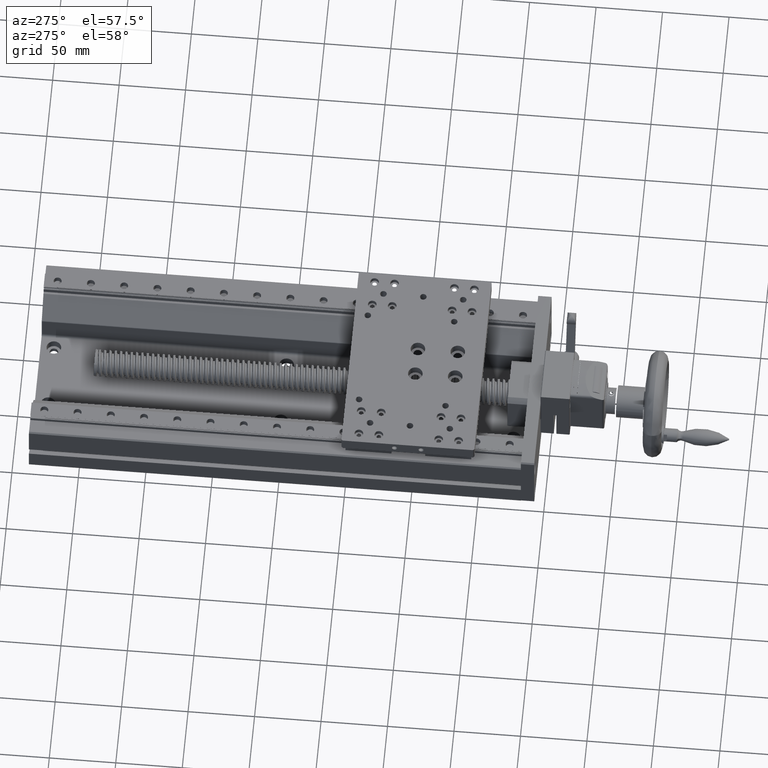
[diagram: clean part render]
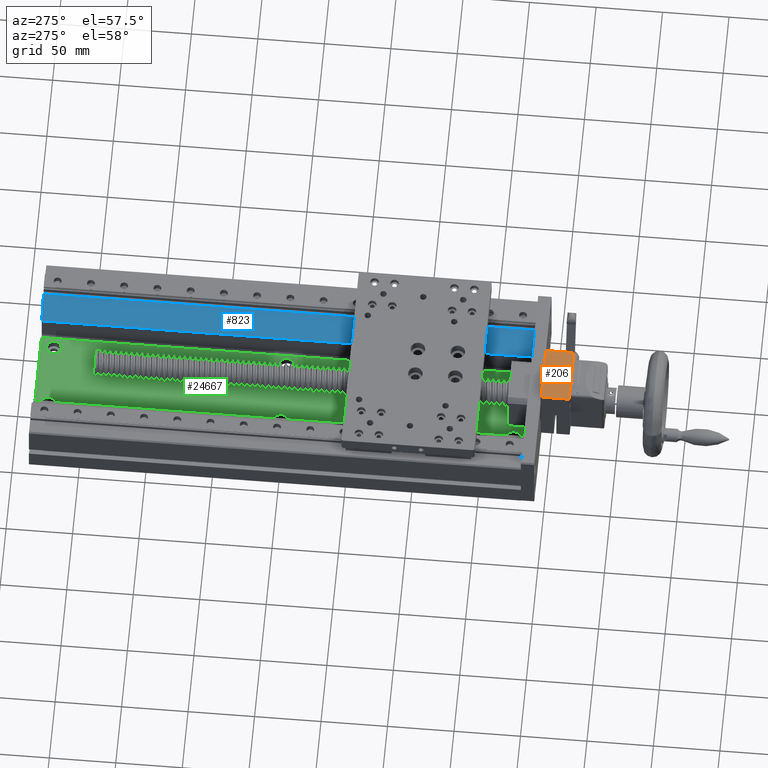
[diagram: same view with three faces highlighted in distinct colors, each labeled with its STEP entity id]
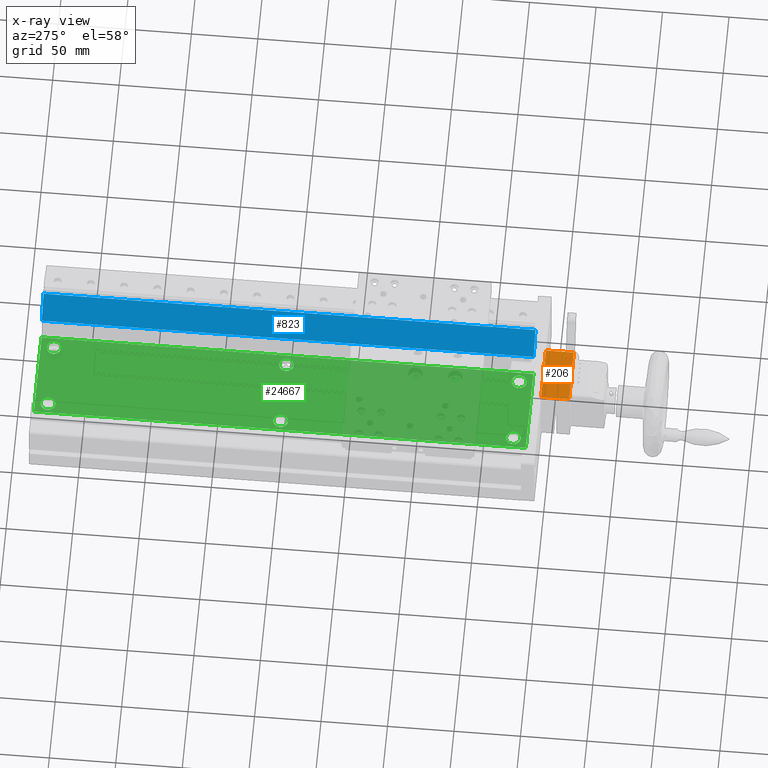
[diagram: x-ray of the same camera — body ghosted, the three highlighted faces saturated]
A machine part, auxiliary view with three faces highlighted in distinct colors.
The next image is the same camera in x-ray (body ghosted, the three faces saturated) — at least one of them is partly hidden behind the body in this view.
Their STEP definitions:

[orange] entity #206 — the highlighted planar face has unit normal (-0, -0, 1).
#206 = ADVANCED_FACE ( 'NONE', ( #39306 ), #38650, .T. ) ;
#697 = VERTEX_POINT ( 'NONE', #29637 ) ;
#2305 = CARTESIAN_POINT ( 'NONE',  ( -48.82647947996969862, -164.5472645979068602, 43.50000000000032685 ) ) ;
#2568 = VECTOR ( 'NONE', #10363, 1000.000000000000000 ) ;
#4469 = EDGE_CURVE ( 'NONE', #31487, #41427, #31402, .T. ) ;
#4506 = AXIS2_PLACEMENT_3D ( 'NONE', #5231, #4803, #28599 ) ;
#4803 = DIRECTION ( 'NONE',  ( -5.554584570077736316E-14, -2.330995182386724595E-16, 1.000000000000000000 ) ) ;
#5231 = CARTESIAN_POINT ( 'NONE',  ( -48.82647947996969862, -165.0472645979068886, 43.50000000000032685 ) ) ;
#7297 = EDGE_CURVE ( 'NONE', #697, #36665, #35237, .T. ) ;
#8092 = CARTESIAN_POINT ( 'NONE',  ( -7.326479479969713715, -165.0472645979070876, 43.50000000000264322 ) ) ;
#9480 = EDGE_CURVE ( 'NONE', #36665, #41427, #21085, .T. ) ;
#10363 = DIRECTION ( 'NONE',  ( 1.000000000000000000, -4.988643906119555962E-15, 5.571237915447113664E-14 ) ) ;
#10793 = CARTESIAN_POINT ( 'NONE',  ( -6.826479479969699504, -164.5472645979070876, 43.50000000000267164 ) ) ;
#11322 = ORIENTED_EDGE ( 'NONE', *, *, #29285, .T. ) ;
#13704 = ORIENTED_EDGE ( 'NONE', *, *, #7297, .T. ) ;
#17697 = CARTESIAN_POINT ( 'NONE',  ( -48.82647947996959203, -143.5472645979068886, 43.50000000000033396 ) ) ;
#21085 = LINE ( 'NONE', #17697, #42819 ) ;
#21454 = CARTESIAN_POINT ( 'NONE',  ( -48.82647947996959203, -143.5472645979068886, 43.50000000000033396 ) ) ;
#21804 = DIRECTION ( 'NONE',  ( 5.154905759538192104E-15, 1.000000000000000000, 2.330995182389588160E-16 ) ) ;
#25384 = VECTOR ( 'NONE', #42141, 1000.000000000000000 ) ;
#26377 = EDGE_LOOP ( 'NONE', ( #13704, #44239, #42542, #11322 ) ) ;
#27129 = CARTESIAN_POINT ( 'NONE',  ( -7.326479479969602693, -143.5472645979070876, 43.50000000000265032 ) ) ;
#28599 = DIRECTION ( 'NONE',  ( -5.154905759538192104E-15, -1.000000000000000000, -2.330995182389588160E-16 ) ) ;
#28688 = DIRECTION ( 'NONE',  ( -1.000000000000000000, 4.988643906119555962E-15, -5.571237915447113664E-14 ) ) ;
#29285 = EDGE_CURVE ( 'NONE', #31487, #697, #41280, .T. ) ;
#29637 = CARTESIAN_POINT ( 'NONE',  ( -7.326479479969713715, -164.5472645979070876, 43.50000000000264322 ) ) ;
#31402 = LINE ( 'NONE', #41927, #25384 ) ;
#31487 = VERTEX_POINT ( 'NONE', #2305 ) ;
#35237 = LINE ( 'NONE', #8092, #37683 ) ;
#36665 = VERTEX_POINT ( 'NONE', #27129 ) ;
#37683 = VECTOR ( 'NONE', #21804, 1000.000000000000000 ) ;
#38650 = PLANE ( 'NONE',  #4506 ) ;
#39306 = FACE_OUTER_BOUND ( 'NONE', #26377, .T. ) ;
#41280 = LINE ( 'NONE', #10793, #2568 ) ;
#41427 = VERTEX_POINT ( 'NONE', #21454 ) ;
#41927 = CARTESIAN_POINT ( 'NONE',  ( -48.82647947996969862, -165.0472645979068886, 43.50000000000032685 ) ) ;
#42141 = DIRECTION ( 'NONE',  ( 5.154905759538192104E-15, 1.000000000000000000, 2.330995182389588160E-16 ) ) ;
#42542 = ORIENTED_EDGE ( 'NONE', *, *, #4469, .F. ) ;
#42819 = VECTOR ( 'NONE', #28688, 1000.000000000000000 ) ;
#44239 = ORIENTED_EDGE ( 'NONE', *, *, #9480, .T. ) ;

[blue] entity #823 — the highlighted planar face has unit normal (-0.7071, 0, 0.7071).
#455 = VECTOR ( 'NONE', #2909, 1000.000000000000114 ) ;
#823 = ADVANCED_FACE ( 'NONE', ( #37671 ), #20213, .T. ) ;
#1484 = DIRECTION ( 'NONE',  ( 3.491481338843133355E-15, 1.000000000000000000, -3.657132581846951845E-29 ) ) ;
#2374 = VERTEX_POINT ( 'NONE', #20084 ) ;
#2909 = DIRECTION ( 'NONE',  ( 0.7071067811866114106, -2.468850131082462164E-15, 0.7071067811864837349 ) ) ;
#3520 = LINE ( 'NONE', #37819, #5252 ) ;
#5252 = VECTOR ( 'NONE', #18085, 1000.000000000000114 ) ;
#5522 = LINE ( 'NONE', #19213, #9824 ) ;
#6726 = DIRECTION ( 'NONE',  ( -0.7071067811864837349, 2.468850131082068917E-15, 0.7071067811866112995 ) ) ;
#7551 = EDGE_CURVE ( 'NONE', #2374, #22403, #41243, .T. ) ;
#8920 = LINE ( 'NONE', #22835, #34039 ) ;
#9824 = VECTOR ( 'NONE', #1484, 1000.000000000000000 ) ;
#10545 = CARTESIAN_POINT ( 'NONE',  ( 7.466413739012411455, 236.9527354020911218, 9.792893218810050371 ) ) ;
#11752 = VERTEX_POINT ( 'NONE', #29406 ) ;
#14636 = VERTEX_POINT ( 'NONE', #35830 ) ;
#14638 = EDGE_CURVE ( 'NONE', #11752, #22403, #8920, .T. ) ;
#17335 = ORIENTED_EDGE ( 'NONE', *, *, #7551, .F. ) ;
#18085 = DIRECTION ( 'NONE',  ( 0.7071067811866114106, -2.468850131082462164E-15, 0.7071067811864837349 ) ) ;
#18217 = EDGE_CURVE ( 'NONE', #14636, #11752, #3520, .T. ) ;
#19213 = CARTESIAN_POINT ( 'NONE',  ( 7.466413739011135142, -133.0472645979088782, 9.792893218810050371 ) ) ;
#19477 = ORIENTED_EDGE ( 'NONE', *, *, #18217, .T. ) ;
#20084 = CARTESIAN_POINT ( 'NONE',  ( 7.466413739012411455, 236.9527354020911218, 9.792893218810050371 ) ) ;
#20213 = PLANE ( 'NONE',  #24352 ) ;
#22403 = VERTEX_POINT ( 'NONE', #23032 ) ;
#22835 = CARTESIAN_POINT ( 'NONE',  ( 22.17352052020166298, -133.0472645979089350, 24.49999999999796785 ) ) ;
#23032 = CARTESIAN_POINT ( 'NONE',  ( 22.17352052020293840, 236.9527354020910650, 24.49999999999796785 ) ) ;
#23803 = CARTESIAN_POINT ( 'NONE',  ( 7.466413739011135142, -133.0472645979088782, 9.792893218810050371 ) ) ;
#24352 = AXIS2_PLACEMENT_3D ( 'NONE', #23803, #6726, #37223 ) ;
#29406 = CARTESIAN_POINT ( 'NONE',  ( 22.17352052020166298, -133.0472645979089350, 24.49999999999796785 ) ) ;
#29797 = EDGE_LOOP ( 'NONE', ( #17335, #31408, #19477, #32423 ) ) ;
#31408 = ORIENTED_EDGE ( 'NONE', *, *, #32087, .F. ) ;
#32087 = EDGE_CURVE ( 'NONE', #14636, #2374, #5522, .T. ) ;
#32423 = ORIENTED_EDGE ( 'NONE', *, *, #14638, .T. ) ;
#34039 = VECTOR ( 'NONE', #36480, 1000.000000000000000 ) ;
#35830 = CARTESIAN_POINT ( 'NONE',  ( 7.466413739011135142, -133.0472645979088782, 9.792893218810050371 ) ) ;
#36480 = DIRECTION ( 'NONE',  ( 3.491481338843133355E-15, 1.000000000000000000, -3.657132581846951845E-29 ) ) ;
#37223 = DIRECTION ( 'NONE',  ( 0.7071067811866112995, -2.468850131082462164E-15, 0.7071067811864837349 ) ) ;
#37671 = FACE_OUTER_BOUND ( 'NONE', #29797, .T. ) ;
#37819 = CARTESIAN_POINT ( 'NONE',  ( 7.466413739011135142, -133.0472645979088782, 9.792893218810050371 ) ) ;
#41243 = LINE ( 'NONE', #10545, #455 ) ;

[green] entity #24667 — the highlighted planar face has unit normal (0, 0, 1).
#145 = CARTESIAN_POINT ( 'NONE',  ( -2.826479479797241456, 232.4527354020911218, -10.00000000000156319 ) ) ;
#420 = AXIS2_PLACEMENT_3D ( 'NONE', #5492, #37082, #2113 ) ;
#432 = EDGE_CURVE ( 'NONE', #40014, #7280, #4549, .T. ) ;
#1128 = ORIENTED_EDGE ( 'NONE', *, *, #22511, .F. ) ;
#1841 = CARTESIAN_POINT ( 'NONE',  ( -52.82647947979784675, 51.95273540209130658, -10.00000000000156319 ) ) ;
#2113 = DIRECTION ( 'NONE',  ( -3.469446951953610639E-15, -1.000000000000000000, 0.000000000000000000 ) ) ;
#2554 = FACE_BOUND ( 'NONE', #14219, .T. ) ;
#2637 = VERTEX_POINT ( 'NONE', #11086 ) ;
#2768 = FACE_BOUND ( 'NONE', #36443, .T. ) ;
#3188 = AXIS2_PLACEMENT_3D ( 'NONE', #9635, #30041, #16781 ) ;
#3883 = CIRCLE ( 'NONE', #3188, 5.500000000000005329 ) ;
#3936 = LINE ( 'NONE', #27955, #21133 ) ;
#4125 = EDGE_LOOP ( 'NONE', ( #7380, #1128 ) ) ;
#4353 = EDGE_LOOP ( 'NONE', ( #25785, #28111, #20445, #39198 ) ) ;
#4549 = CIRCLE ( 'NONE', #28916, 5.500000000000005329 ) ;
#4613 = VERTEX_POINT ( 'NONE', #10052 ) ;
#4643 = CARTESIAN_POINT ( 'NONE',  ( 5.173520520199259565, -133.0472645979088782, -10.00000000000156319 ) ) ;
#4935 = CIRCLE ( 'NONE', #21420, 5.500000000000005329 ) ;
#5492 = CARTESIAN_POINT ( 'NONE',  ( -2.826479479798471584, -123.0472645979088213, -10.00000000000156319 ) ) ;
#6599 = CARTESIAN_POINT ( 'NONE',  ( 5.173520520199259565, -133.0472645979088782, -10.00000000000156319 ) ) ;
#6868 = CIRCLE ( 'NONE', #420, 5.500000000000005329 ) ;
#7108 = CARTESIAN_POINT ( 'NONE',  ( -2.826479479798462702, -117.5472645979088213, -10.00000000000156319 ) ) ;
#7115 = ORIENTED_EDGE ( 'NONE', *, *, #432, .F. ) ;
#7214 = CIRCLE ( 'NONE', #18687, 5.500000000000005329 ) ;
#7280 = VERTEX_POINT ( 'NONE', #38805 ) ;
#7312 = AXIS2_PLACEMENT_3D ( 'NONE', #16134, #19512, #9415 ) ;
#7380 = ORIENTED_EDGE ( 'NONE', *, *, #19348, .F. ) ;
#7590 = LINE ( 'NONE', #24660, #9501 ) ;
#7740 = DIRECTION ( 'NONE',  ( -3.469446951953610639E-15, -1.000000000000000000, 0.000000000000000000 ) ) ;
#8165 = EDGE_CURVE ( 'NONE', #30582, #43691, #4935, .T. ) ;
#8581 = DIRECTION ( 'NONE',  ( -3.784851220313030003E-15, -1.000000000000000000, 0.000000000000000000 ) ) ;
#8736 = CARTESIAN_POINT ( 'NONE',  ( -52.82647947979786807, 46.45273540209129948, -10.00000000000156319 ) ) ;
#8815 = AXIS2_PLACEMENT_3D ( 'NONE', #24338, #40888, #17802 ) ;
#9104 = ORIENTED_EDGE ( 'NONE', *, *, #41941, .F. ) ;
#9415 = DIRECTION ( 'NONE',  ( -3.469446951953610639E-15, -1.000000000000000000, 0.000000000000000000 ) ) ;
#9436 = AXIS2_PLACEMENT_3D ( 'NONE', #24159, #17379, #7740 ) ;
#9464 = CARTESIAN_POINT ( 'NONE',  ( -52.82647947979783254, 57.45273540209130658, -10.00000000000156319 ) ) ;
#9466 = AXIS2_PLACEMENT_3D ( 'NONE', #10926, #11581, #42079 ) ;
#9501 = VECTOR ( 'NONE', #21517, 1000.000000000000000 ) ;
#9635 = CARTESIAN_POINT ( 'NONE',  ( -52.82647947979724279, 226.9527354020912924, -10.00000000000156319 ) ) ;
#9739 = FACE_BOUND ( 'NONE', #10377, .T. ) ;
#10022 = ORIENTED_EDGE ( 'NONE', *, *, #16575, .F. ) ;
#10052 = CARTESIAN_POINT ( 'NONE',  ( -2.826479479798490679, -128.5472645979088213, -10.00000000000156319 ) ) ;
#10184 = VECTOR ( 'NONE', #22370, 1000.000000000000000 ) ;
#10377 = EDGE_LOOP ( 'NONE', ( #25655, #10022 ) ) ;
#10387 = DIRECTION ( 'NONE',  ( 1.000000000000000000, -3.491481338843133355E-15, -3.491481338843133355E-15 ) ) ;
#10822 = ORIENTED_EDGE ( 'NONE', *, *, #8165, .F. ) ;
#10878 = CIRCLE ( 'NONE', #7312, 5.500000000000005329 ) ;
#10926 = CARTESIAN_POINT ( 'NONE',  ( -2.826479479797860961, 51.95273540209113605, -10.00000000000156319 ) ) ;
#11086 = CARTESIAN_POINT ( 'NONE',  ( 5.173520520200536765, 236.9527354020911218, -10.00000000000156319 ) ) ;
#11133 = CARTESIAN_POINT ( 'NONE',  ( -52.82647947979722858, 232.4527354020912924, -10.00000000000156319 ) ) ;
#11443 = ORIENTED_EDGE ( 'NONE', *, *, #21760, .F. ) ;
#11536 = EDGE_CURVE ( 'NONE', #39176, #2637, #38387, .T. ) ;
#11581 = DIRECTION ( 'NONE',  ( 3.491481338843133355E-15, 2.438088387897967896E-29, 1.000000000000000000 ) ) ;
#12359 = CARTESIAN_POINT ( 'NONE',  ( -60.82647947979946679, 236.9527354020913208, -10.00000000000156319 ) ) ;
#12487 = VERTEX_POINT ( 'NONE', #6599 ) ;
#12723 = EDGE_CURVE ( 'NONE', #7280, #40014, #38913, .T. ) ;
#12761 = VERTEX_POINT ( 'NONE', #9464 ) ;
#13081 = VERTEX_POINT ( 'NONE', #35877 ) ;
#13083 = DIRECTION ( 'NONE',  ( -3.784851220313030003E-15, -1.000000000000000000, 0.000000000000000000 ) ) ;
#13316 = FACE_OUTER_BOUND ( 'NONE', #4353, .T. ) ;
#14219 = EDGE_LOOP ( 'NONE', ( #9104, #10822 ) ) ;
#14368 = CARTESIAN_POINT ( 'NONE',  ( -52.82647947979724279, 226.9527354020912924, -10.00000000000156319 ) ) ;
#14485 = DIRECTION ( 'NONE',  ( 1.000000000000000000, -3.491481338843133355E-15, -3.491481338843133355E-15 ) ) ;
#16046 = EDGE_CURVE ( 'NONE', #35369, #17813, #21652, .T. ) ;
#16134 = CARTESIAN_POINT ( 'NONE',  ( -2.826479479797860961, 51.95273540209113605, -10.00000000000156319 ) ) ;
#16443 = DIRECTION ( 'NONE',  ( 3.491481338843133355E-15, 2.438088387897967896E-29, 1.000000000000000000 ) ) ;
#16575 = EDGE_CURVE ( 'NONE', #17813, #35369, #10878, .T. ) ;
#16682 = EDGE_CURVE ( 'NONE', #13081, #39176, #7590, .T. ) ;
#16781 = DIRECTION ( 'NONE',  ( -3.784851220313030003E-15, -1.000000000000000000, 0.000000000000000000 ) ) ;
#16897 = CARTESIAN_POINT ( 'NONE',  ( -60.82647947980074576, -133.0472645979086792, -10.00000000000156319 ) ) ;
#17089 = DIRECTION ( 'NONE',  ( -3.784851220313030003E-15, -1.000000000000000000, 0.000000000000000000 ) ) ;
#17379 = DIRECTION ( 'NONE',  ( 3.491481338843133355E-15, 2.438088387897967896E-29, 1.000000000000000000 ) ) ;
#17433 = AXIS2_PLACEMENT_3D ( 'NONE', #29894, #43080, #29427 ) ;
#17588 = ORIENTED_EDGE ( 'NONE', *, *, #12723, .F. ) ;
#17802 = DIRECTION ( 'NONE',  ( -3.469446951953610639E-15, -1.000000000000000000, 0.000000000000000000 ) ) ;
#17813 = VERTEX_POINT ( 'NONE', #34080 ) ;
#18170 = VERTEX_POINT ( 'NONE', #145 ) ;
#18550 = EDGE_CURVE ( 'NONE', #30838, #4613, #28186, .T. ) ;
#18687 = AXIS2_PLACEMENT_3D ( 'NONE', #30143, #43800, #13083 ) ;
#18807 = AXIS2_PLACEMENT_3D ( 'NONE', #30236, #30899, #36713 ) ;
#19348 = EDGE_CURVE ( 'NONE', #32567, #18170, #26689, .T. ) ;
#19512 = DIRECTION ( 'NONE',  ( 3.491481338843133355E-15, 2.438088387897967896E-29, 1.000000000000000000 ) ) ;
#20445 = ORIENTED_EDGE ( 'NONE', *, *, #27362, .T. ) ;
#21133 = VECTOR ( 'NONE', #14485, 1000.000000000000000 ) ;
#21420 = AXIS2_PLACEMENT_3D ( 'NONE', #14368, #28070, #37472 ) ;
#21517 = DIRECTION ( 'NONE',  ( 3.491481338843133355E-15, 1.000000000000000000, -3.657132581846951845E-29 ) ) ;
#21652 = CIRCLE ( 'NONE', #9466, 5.500000000000005329 ) ;
#21760 = EDGE_CURVE ( 'NONE', #12761, #40726, #7214, .T. ) ;
#22370 = DIRECTION ( 'NONE',  ( 3.491481338843133355E-15, 1.000000000000000000, -3.657132581846951845E-29 ) ) ;
#22511 = EDGE_CURVE ( 'NONE', #18170, #32567, #32371, .T. ) ;
#22572 = VECTOR ( 'NONE', #10387, 1000.000000000000000 ) ;
#23430 = DIRECTION ( 'NONE',  ( -3.491481338843133355E-15, -1.000000000000000000, 3.657132581846951845E-29 ) ) ;
#24159 = CARTESIAN_POINT ( 'NONE',  ( -2.826479479797250338, 226.9527354020911218, -10.00000000000156319 ) ) ;
#24338 = CARTESIAN_POINT ( 'NONE',  ( -2.826479479798471584, -123.0472645979088213, -10.00000000000156319 ) ) ;
#24660 = CARTESIAN_POINT ( 'NONE',  ( -60.82647947980074576, -133.0472645979086792, -10.00000000000156319 ) ) ;
#24667 = ADVANCED_FACE ( 'NONE', ( #44253, #36410, #26999, #2554, #2768, #9739, #13316 ), #33502, .T. ) ;
#24757 = EDGE_LOOP ( 'NONE', ( #43531, #41985 ) ) ;
#25636 = DIRECTION ( 'NONE',  ( 3.491481338843133355E-15, 2.438088387897967896E-29, 1.000000000000000000 ) ) ;
#25655 = ORIENTED_EDGE ( 'NONE', *, *, #16046, .F. ) ;
#25785 = ORIENTED_EDGE ( 'NONE', *, *, #11536, .F. ) ;
#26689 = CIRCLE ( 'NONE', #18807, 5.500000000000005329 ) ;
#26996 = CARTESIAN_POINT ( 'NONE',  ( -52.82647947979847913, -128.5472645979086508, -10.00000000000156319 ) ) ;
#26999 = FACE_BOUND ( 'NONE', #40510, .T. ) ;
#27362 = EDGE_CURVE ( 'NONE', #13081, #12487, #3936, .T. ) ;
#27667 = CARTESIAN_POINT ( 'NONE',  ( -60.82647947979946679, 236.9527354020913208, -10.00000000000156319 ) ) ;
#27876 = DIRECTION ( 'NONE',  ( 3.491481338843133355E-15, 2.438088387897967896E-29, 1.000000000000000000 ) ) ;
#27955 = CARTESIAN_POINT ( 'NONE',  ( -60.82647947980074576, -133.0472645979086792, -10.00000000000156319 ) ) ;
#28070 = DIRECTION ( 'NONE',  ( 3.491481338843133355E-15, 2.438088387897967896E-29, 1.000000000000000000 ) ) ;
#28111 = ORIENTED_EDGE ( 'NONE', *, *, #16682, .F. ) ;
#28186 = CIRCLE ( 'NONE', #8815, 5.500000000000005329 ) ;
#28198 = CARTESIAN_POINT ( 'NONE',  ( -52.82647947979725700, 221.4527354020912924, -10.00000000000156319 ) ) ;
#28405 = ORIENTED_EDGE ( 'NONE', *, *, #29084, .F. ) ;
#28916 = AXIS2_PLACEMENT_3D ( 'NONE', #30796, #27876, #17089 ) ;
#29084 = EDGE_CURVE ( 'NONE', #40726, #12761, #36939, .T. ) ;
#29427 = DIRECTION ( 'NONE',  ( -3.784851220313030003E-15, -1.000000000000000000, 0.000000000000000000 ) ) ;
#29894 = CARTESIAN_POINT ( 'NONE',  ( -52.82647947979845782, -123.0472645979086508, -10.00000000000156319 ) ) ;
#30041 = DIRECTION ( 'NONE',  ( 3.491481338843133355E-15, 2.438088387897967896E-29, 1.000000000000000000 ) ) ;
#30143 = CARTESIAN_POINT ( 'NONE',  ( -52.82647947979784675, 51.95273540209130658, -10.00000000000156319 ) ) ;
#30236 = CARTESIAN_POINT ( 'NONE',  ( -2.826479479797250338, 226.9527354020911218, -10.00000000000156319 ) ) ;
#30582 = VERTEX_POINT ( 'NONE', #11133 ) ;
#30796 = CARTESIAN_POINT ( 'NONE',  ( -52.82647947979845782, -123.0472645979086508, -10.00000000000156319 ) ) ;
#30829 = AXIS2_PLACEMENT_3D ( 'NONE', #16897, #16443, #23430 ) ;
#30838 = VERTEX_POINT ( 'NONE', #7108 ) ;
#30899 = DIRECTION ( 'NONE',  ( 3.491481338843133355E-15, 2.438088387897967896E-29, 1.000000000000000000 ) ) ;
#31244 = AXIS2_PLACEMENT_3D ( 'NONE', #1841, #25636, #8581 ) ;
#32371 = CIRCLE ( 'NONE', #9436, 5.500000000000005329 ) ;
#32567 = VERTEX_POINT ( 'NONE', #33493 ) ;
#33493 = CARTESIAN_POINT ( 'NONE',  ( -2.826479479797269434, 221.4527354020911218, -10.00000000000156319 ) ) ;
#33502 = PLANE ( 'NONE',  #30829 ) ;
#34080 = CARTESIAN_POINT ( 'NONE',  ( -2.826479479797852079, 57.45273540209114316, -10.00000000000156319 ) ) ;
#35369 = VERTEX_POINT ( 'NONE', #41042 ) ;
#35877 = CARTESIAN_POINT ( 'NONE',  ( -60.82647947980074576, -133.0472645979086792, -10.00000000000156319 ) ) ;
#36410 = FACE_BOUND ( 'NONE', #24757, .T. ) ;
#36443 = EDGE_LOOP ( 'NONE', ( #28405, #11443 ) ) ;
#36713 = DIRECTION ( 'NONE',  ( -3.469446951953610639E-15, -1.000000000000000000, 0.000000000000000000 ) ) ;
#36939 = CIRCLE ( 'NONE', #31244, 5.500000000000005329 ) ;
#37082 = DIRECTION ( 'NONE',  ( 3.491481338843133355E-15, 2.438088387897967896E-29, 1.000000000000000000 ) ) ;
#37472 = DIRECTION ( 'NONE',  ( -3.784851220313030003E-15, -1.000000000000000000, 0.000000000000000000 ) ) ;
#38387 = LINE ( 'NONE', #27667, #22572 ) ;
#38405 = EDGE_CURVE ( 'NONE', #12487, #2637, #39155, .T. ) ;
#38805 = CARTESIAN_POINT ( 'NONE',  ( -52.82647947979844361, -117.5472645979086508, -10.00000000000156319 ) ) ;
#38913 = CIRCLE ( 'NONE', #17433, 5.500000000000005329 ) ;
#39155 = LINE ( 'NONE', #4643, #10184 ) ;
#39176 = VERTEX_POINT ( 'NONE', #12359 ) ;
#39198 = ORIENTED_EDGE ( 'NONE', *, *, #38405, .T. ) ;
#40014 = VERTEX_POINT ( 'NONE', #26996 ) ;
#40510 = EDGE_LOOP ( 'NONE', ( #7115, #17588 ) ) ;
#40726 = VERTEX_POINT ( 'NONE', #8736 ) ;
#40888 = DIRECTION ( 'NONE',  ( 3.491481338843133355E-15, 2.438088387897967896E-29, 1.000000000000000000 ) ) ;
#41042 = CARTESIAN_POINT ( 'NONE',  ( -2.826479479797880057, 46.45273540209113605, -10.00000000000156319 ) ) ;
#41941 = EDGE_CURVE ( 'NONE', #43691, #30582, #3883, .T. ) ;
#41985 = ORIENTED_EDGE ( 'NONE', *, *, #18550, .F. ) ;
#42079 = DIRECTION ( 'NONE',  ( -3.469446951953610639E-15, -1.000000000000000000, 0.000000000000000000 ) ) ;
#43080 = DIRECTION ( 'NONE',  ( 3.491481338843133355E-15, 2.438088387897967896E-29, 1.000000000000000000 ) ) ;
#43531 = ORIENTED_EDGE ( 'NONE', *, *, #43768, .F. ) ;
#43691 = VERTEX_POINT ( 'NONE', #28198 ) ;
#43768 = EDGE_CURVE ( 'NONE', #4613, #30838, #6868, .T. ) ;
#43800 = DIRECTION ( 'NONE',  ( 3.491481338843133355E-15, 2.438088387897967896E-29, 1.000000000000000000 ) ) ;
#44253 = FACE_BOUND ( 'NONE', #4125, .T. ) ;